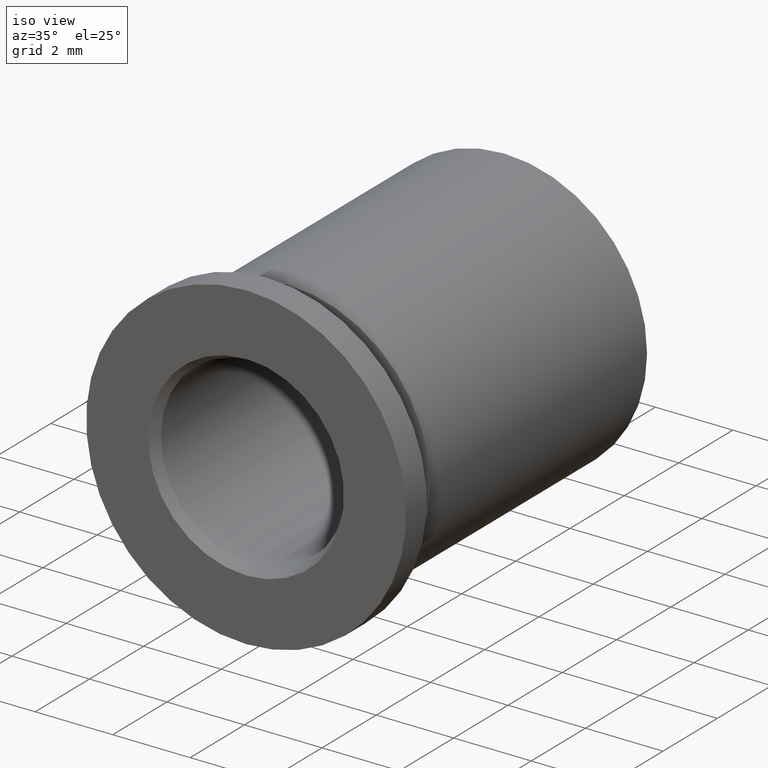
[diagram: clean part render]
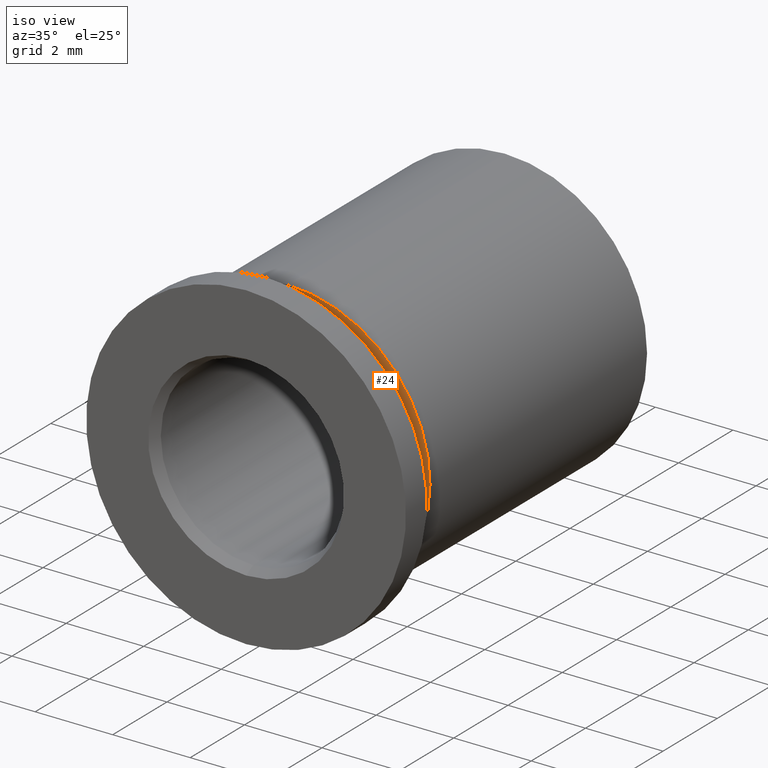
[diagram: same view with one face highlighted and labeled with its STEP entity id]
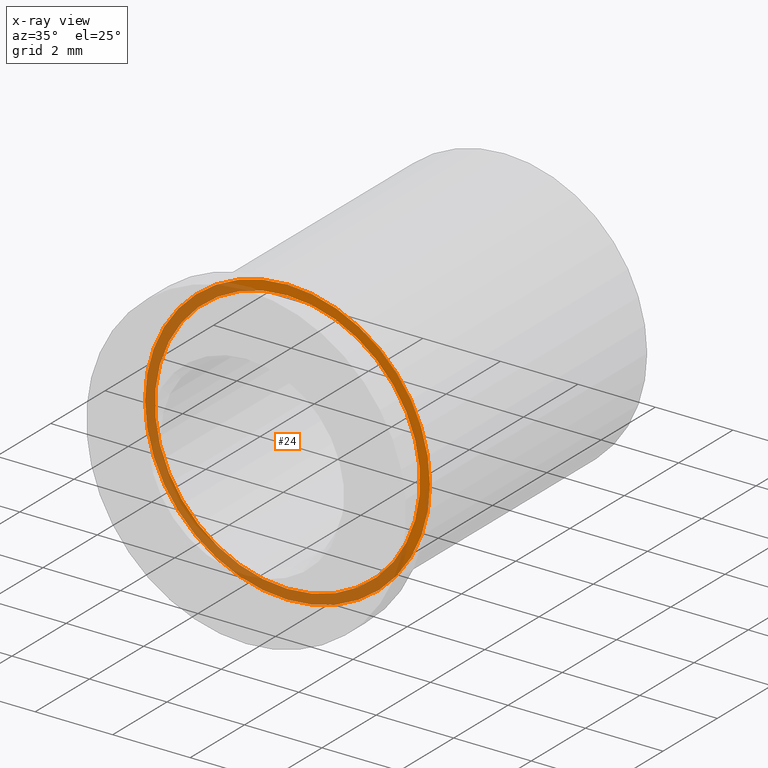
[diagram: x-ray of the same camera — body ghosted, the highlighted face saturated]
A machine part, iso view. The second image highlights one B-rep face of the part: STEP entity #24.
The next image is the same camera in x-ray: the body ghosted, the highlighted face saturated — about 59% of this face is hidden behind the body in this view.
In plain terms, the highlighted planar face has unit normal (0, -1, 0).
Its self-contained STEP definition (entity closure, byte-faithful):
#17 = ORIENTED_EDGE ( 'NONE', *, *, #18, .F. ) ;
#18 = EDGE_CURVE ( 'NONE', #87, #75, #230, .T. ) ;
#24 = ADVANCED_FACE ( 'NONE', ( #175, #174 ), #265, .T. ) ;
#43 = EDGE_CURVE ( 'NONE', #92, #94, #352, .T. ) ;
#51 = ORIENTED_EDGE ( 'NONE', *, *, #101, .T. ) ;
#52 = EDGE_LOOP ( 'NONE', ( #51, #55 ) ) ;
#53 = EDGE_LOOP ( 'NONE', ( #56, #17 ) ) ;
#55 = ORIENTED_EDGE ( 'NONE', *, *, #43, .T. ) ;
#56 = ORIENTED_EDGE ( 'NONE', *, *, #100, .F. ) ;
#75 = VERTEX_POINT ( 'NONE', #396 ) ;
#87 = VERTEX_POINT ( 'NONE', #483 ) ;
#92 = VERTEX_POINT ( 'NONE', #436 ) ;
#94 = VERTEX_POINT ( 'NONE', #435 ) ;
#100 = EDGE_CURVE ( 'NONE', #75, #87, #419, .T. ) ;
#101 = EDGE_CURVE ( 'NONE', #94, #92, #505, .T. ) ;
#174 = FACE_OUTER_BOUND ( 'NONE', #53, .T. ) ;
#175 = FACE_BOUND ( 'NONE', #52, .T. ) ;
#226 = DIRECTION ( 'NONE',  ( 0.0000000000000000000, 0.0000000000000000000, 1.000000000000000000 ) ) ;
#227 = DIRECTION ( 'NONE',  ( 0.0000000000000000000, 1.000000000000000000, 0.0000000000000000000 ) ) ;
#228 = CARTESIAN_POINT ( 'NONE',  ( 1.508592567273786700E-015, -3.556000000000000900, 0.0000000000000000000 ) ) ;
#229 = AXIS2_PLACEMENT_3D ( 'NONE', #228, #227, #226 ) ;
#230 = CIRCLE ( 'NONE', #229, 3.676649999999999100 ) ;
#261 = DIRECTION ( 'NONE',  ( 0.0000000000000000000, 0.0000000000000000000, -1.000000000000000000 ) ) ;
#262 = DIRECTION ( 'NONE',  ( 0.0000000000000000000, -1.000000000000000000, 0.0000000000000000000 ) ) ;
#263 = CARTESIAN_POINT ( 'NONE',  ( 2.063750000000002000, -3.556000000000000000, 0.0000000000000000000 ) ) ;
#264 = AXIS2_PLACEMENT_3D ( 'NONE', #263, #262, #261 ) ;
#265 = PLANE ( 'NONE',  #264 ) ;
#348 = DIRECTION ( 'NONE',  ( 0.0000000000000000000, 0.0000000000000000000, 1.000000000000000000 ) ) ;
#349 = DIRECTION ( 'NONE',  ( 0.0000000000000000000, 1.000000000000000000, 0.0000000000000000000 ) ) ;
#350 = CARTESIAN_POINT ( 'NONE',  ( 1.508592567273786700E-015, -3.556000000000000900, 0.0000000000000000000 ) ) ;
#351 = AXIS2_PLACEMENT_3D ( 'NONE', #350, #349, #348 ) ;
#352 = CIRCLE ( 'NONE', #351, 3.422649999999999500 ) ;
#396 = CARTESIAN_POINT ( 'NONE',  ( 1.508592567273786700E-015, -3.556000000000000900, 3.676649999999999100 ) ) ;
#415 = DIRECTION ( 'NONE',  ( 0.0000000000000000000, 0.0000000000000000000, 1.000000000000000000 ) ) ;
#416 = DIRECTION ( 'NONE',  ( 0.0000000000000000000, 1.000000000000000000, 0.0000000000000000000 ) ) ;
#417 = CARTESIAN_POINT ( 'NONE',  ( 1.508592567273786700E-015, -3.556000000000000900, 0.0000000000000000000 ) ) ;
#418 = AXIS2_PLACEMENT_3D ( 'NONE', #417, #416, #415 ) ;
#419 = CIRCLE ( 'NONE', #418, 3.676649999999999100 ) ;
#435 = CARTESIAN_POINT ( 'NONE',  ( 1.508592567273786700E-015, -3.556000000000000900, 3.422649999999999500 ) ) ;
#436 = CARTESIAN_POINT ( 'NONE',  ( 1.927746303983955100E-015, -3.556000000000000900, -3.422649999999999500 ) ) ;
#483 = CARTESIAN_POINT ( 'NONE',  ( 1.958852332682298100E-015, -3.556000000000000900, -3.676649999999999100 ) ) ;
#501 = DIRECTION ( 'NONE',  ( 0.0000000000000000000, 0.0000000000000000000, 1.000000000000000000 ) ) ;
#502 = DIRECTION ( 'NONE',  ( 0.0000000000000000000, 1.000000000000000000, 0.0000000000000000000 ) ) ;
#503 = CARTESIAN_POINT ( 'NONE',  ( 1.508592567273786700E-015, -3.556000000000000900, 0.0000000000000000000 ) ) ;
#504 = AXIS2_PLACEMENT_3D ( 'NONE', #503, #502, #501 ) ;
#505 = CIRCLE ( 'NONE', #504, 3.422649999999999500 ) ;